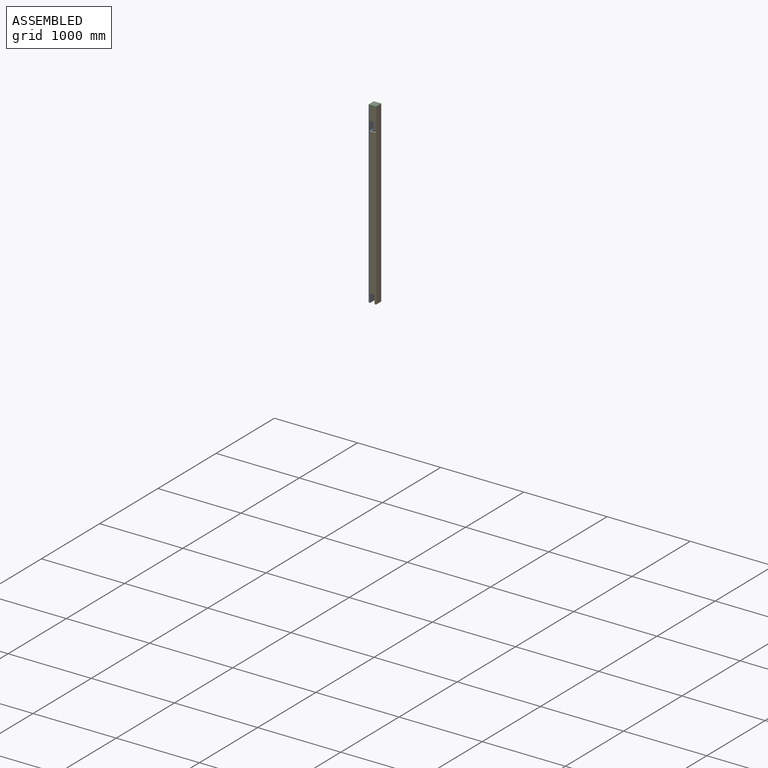
[diagram: assembled view]
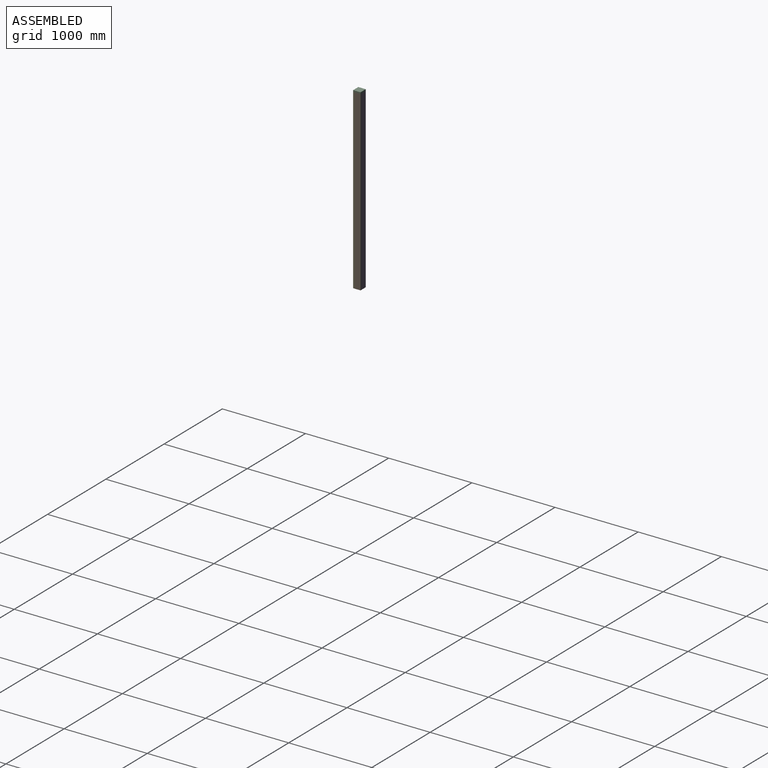
[diagram: assembled view, second angle]
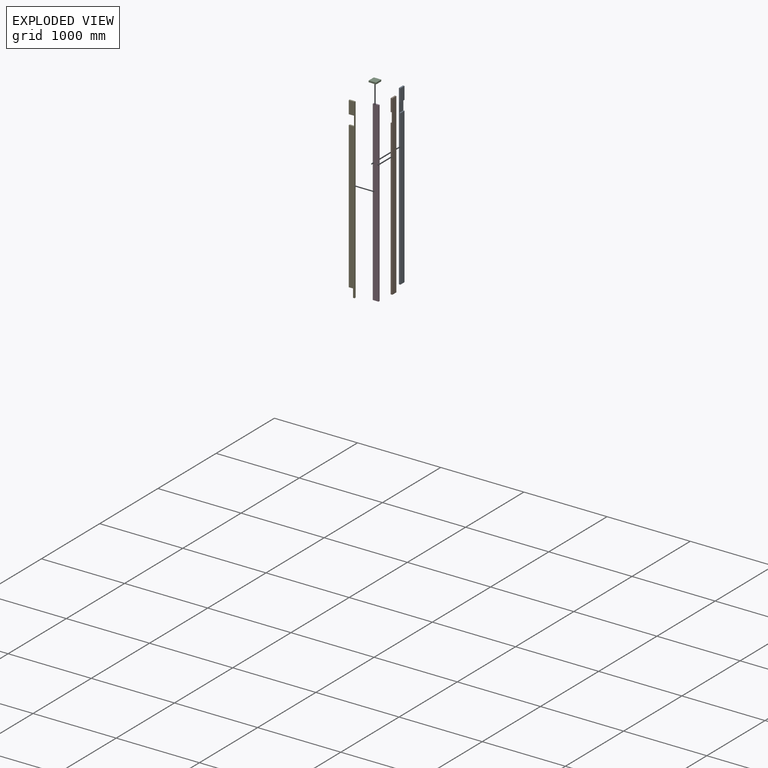
[diagram: exploded view]
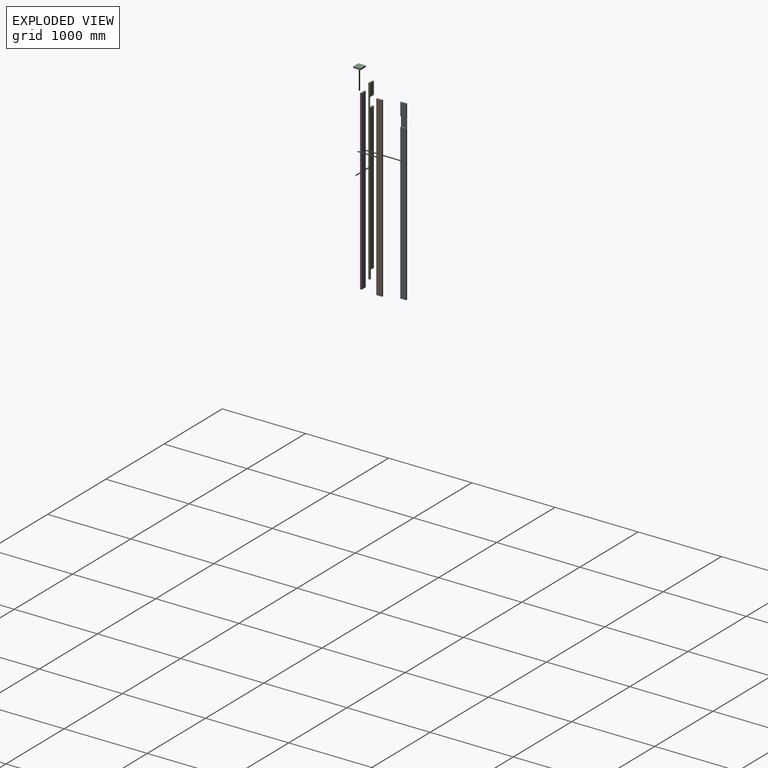
[diagram: exploded view, second angle]
ASSEMBLY  parts=5 mates=4
PART A: 10 faces, bbox 69.9x19.1x2133.6 mm
  f0: plane 152.4x69.85mm, normal (0,-1,0), area 10645.1mm2, adj f1,f3,f4,f8
  f1: plane 2133.6x19.05mm, normal (-1,0,0), area 39153.1mm2, adj f0,f2,f4,f5,f6,f7,f8,f9
  f2: plane 69.85x19.05mm, normal (0,0,-1), area 1330.6mm2, adj f1,f3,f5,f6
  f3: plane 2133.6x19.05mm, normal (1,0,0), area 39153.1mm2, adj f0,f2,f4,f5,f6,f7,f8,f9
  f4: plane 69.85x19.05mm, normal (0,0,1), area 1330.6mm2, adj f0,f1,f3,f6
  f5: plane 1863.73x69.85mm, normal (0,-1,0), area 130181.2mm2, adj f1,f2,f3,f7
  f6: plane 2133.6x69.85mm, normal (0,1,0), area 149032mm2, adj f1,f2,f3,f4
  f7: plane 69.85x12.7mm, normal (0,0,1), area 887.1mm2, adj f1,f3,f5,f9
  f8: plane 69.85x12.7mm, normal (0,0,-1), area 887.1mm2, adj f0,f1,f3,f9
  f9: plane 117.48x69.85mm, normal (0,-1,0), area 8205.6mm2, adj f1,f3,f7,f8
PART B: 10 faces, bbox 69.9x19.1x2133.6 mm
  f0: plane 2133.6x19.05mm, normal (-1,0,0), area 39153.1mm2, adj f1,f3,f4,f5,f6,f7,f9
  f1: plane 69.85x19.05mm, normal (0,0,-1), area 1330.6mm2, adj f0,f2,f4,f5
  f2: plane 2133.6x19.05mm, normal (1,0,0), area 40645.1mm2, adj f1,f3,f4,f5
  f3: plane 69.85x19.05mm, normal (0,0,1), area 1330.6mm2, adj f0,f2,f4,f5
  f4: plane 2133.6x69.85mm, normal (0,-1,0), area 149032mm2, adj f0,f1,f2,f3
  f5: plane 2133.6x69.85mm, normal (0,1,0), area 143064.2mm2, adj f0,f1,f2,f3,f6,f7,f8
  f6: plane 50.8x12.7mm, normal (0,0,1), area 645.2mm2, adj f0,f5,f8,f9
  f7: plane 50.8x12.7mm, normal (0,0,-1), area 645.2mm2, adj f0,f5,f8,f9
  f8: plane 117.48x12.7mm, normal (-1,0,0), area 1491.9mm2, adj f5,f6,f7,f9
  f9: plane 117.48x50.8mm, normal (0,1,0), area 5967.7mm2, adj f0,f6,f7,f8
PART C: 6 faces, bbox 88.9x19.1x88.9 mm
  f0: plane 88.9x19.05mm, normal (-1,0,0), area 1693.5mm2, adj f1,f3,f4,f5
  f1: plane 88.9x19.05mm, normal (0,0,-1), area 1693.5mm2, adj f0,f2,f4,f5
  f2: plane 88.9x19.05mm, normal (1,0,0), area 1693.5mm2, adj f1,f3,f4,f5
  f3: plane 88.9x19.05mm, normal (0,0,1), area 1693.5mm2, adj f0,f2,f4,f5
  f4: plane 88.9x88.9mm, normal (0,-1,0), area 7903.2mm2, adj f0,f1,f2,f3
  f5: plane 88.9x88.9mm, normal (0,1,0), area 7903.2mm2, adj f0,f1,f2,f3
PART D: 6 faces, bbox 69.9x19.1x2133.6 mm
  f0: plane 2133.6x19.05mm, normal (-1,0,0), area 40645.1mm2, adj f1,f3,f4,f5
  f1: plane 69.85x19.05mm, normal (0,0,-1), area 1330.6mm2, adj f0,f2,f4,f5
  f2: plane 2133.6x19.05mm, normal (1,0,0), area 40645.1mm2, adj f1,f3,f4,f5
  f3: plane 69.85x19.05mm, normal (0,0,1), area 1330.6mm2, adj f0,f2,f4,f5
  f4: plane 2133.6x69.85mm, normal (0,-1,0), area 149032mm2, adj f0,f1,f2,f3
  f5: plane 2133.6x69.85mm, normal (0,1,0), area 149032mm2, adj f0,f1,f2,f3
PART E: 12 faces, bbox 69.9x19.1x2133.6 mm
  f0: plane 1762.13x19.05mm, normal (-1,0,0), area 33568.5mm2, adj f2,f3,f7,f11
  f1: plane 19.05x19.05mm, normal (0,0,-1), area 362.9mm2, adj f2,f3,f5,f10
  f2: plane 2133.6x69.85mm, normal (0,-1,0), area 136411mm2, adj f0,f1,f4,f5,f6,f7,f8,f9
  f3: plane 2133.6x69.85mm, normal (0,1,0), area 136411mm2, adj f0,f1,f4,f5,f6,f7,f8,f9
  f4: plane 152.4x19.05mm, normal (-1,0,0), area 2903.2mm2, adj f2,f3,f6,f9
  f5: plane 2133.6x19.05mm, normal (1,0,0), area 40645.1mm2, adj f1,f2,f3,f6
  f6: plane 69.85x19.05mm, normal (0,0,1), area 1330.6mm2, adj f2,f3,f4,f5
  f7: plane 63.5x19.05mm, normal (0,0,1), area 1209.7mm2, adj f0,f2,f3,f8
  f8: plane 117.48x19.05mm, normal (-1,0,0), area 2237.9mm2, adj f2,f3,f7,f9
  f9: plane 63.5x19.05mm, normal (0,0,-1), area 1209.7mm2, adj f2,f3,f4,f8
  f10: plane 101.6x19.05mm, normal (-1,0,0), area 1935.5mm2, adj f1,f2,f3,f11
  f11: plane 50.8x19.05mm, normal (0,0,-1), area 967.7mm2, adj f0,f2,f3,f10
PLACE A rot(axis=(0,0,1),90deg) t=(-308.98,-79.37,70.94)mm
PLACE B rot(axis=(0,0,1),90deg) t=(-239.13,-60.32,70.94)mm
PLACE C rot(axis=(-0.58,-0.58,0.58),120deg) t=(-220.08,-79.37,2204.54)mm
PLACE D t=(-308.98,9.53,70.94)mm
PLACE E t=(-289.93,-60.32,70.94)mm
MATE fastened C.f3 <-> A.f6  axis (-1,0,0) through (-308.98,-79.37,2204.54)mm
MATE fastened A.f4 <-> D.f3  axis (0,0,1) through (-308.98,-9.52,2204.54)mm
MATE fastened E.f6 <-> B.f3  axis (0,0,1) through (-220.08,-60.32,2204.54)mm
MATE fastened B.f2 <-> D.f5  axis (0,1,0) through (-239.13,9.53,2204.54)mm
